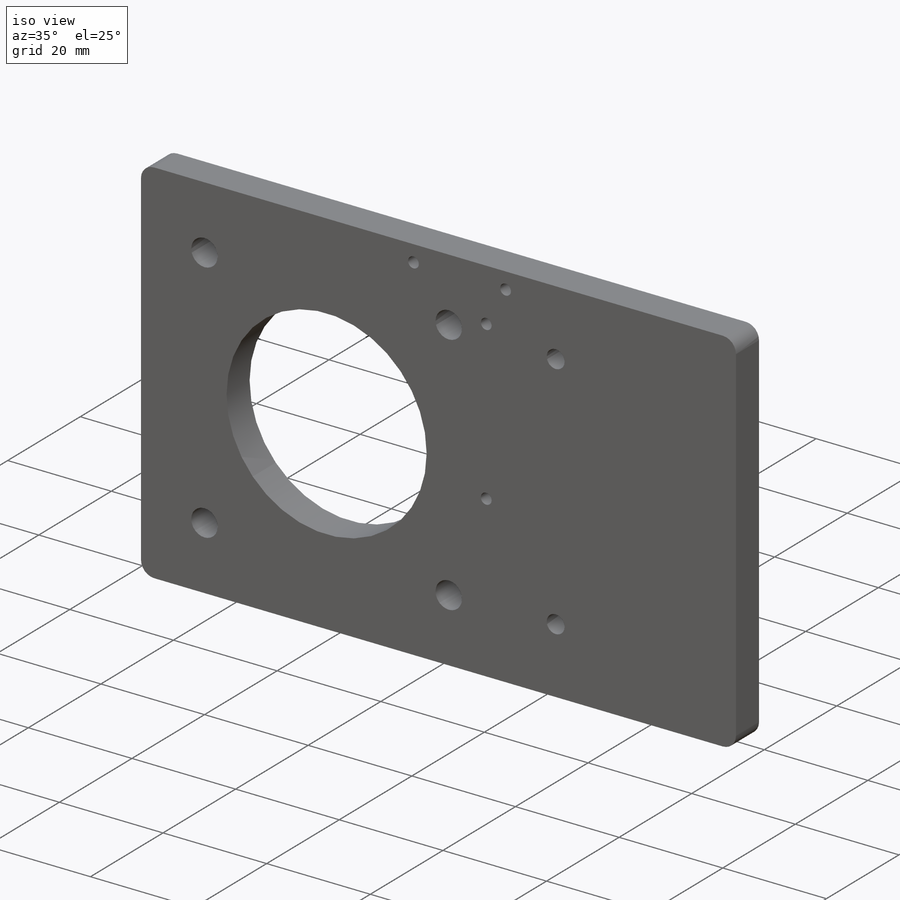
[diagram: iso view]
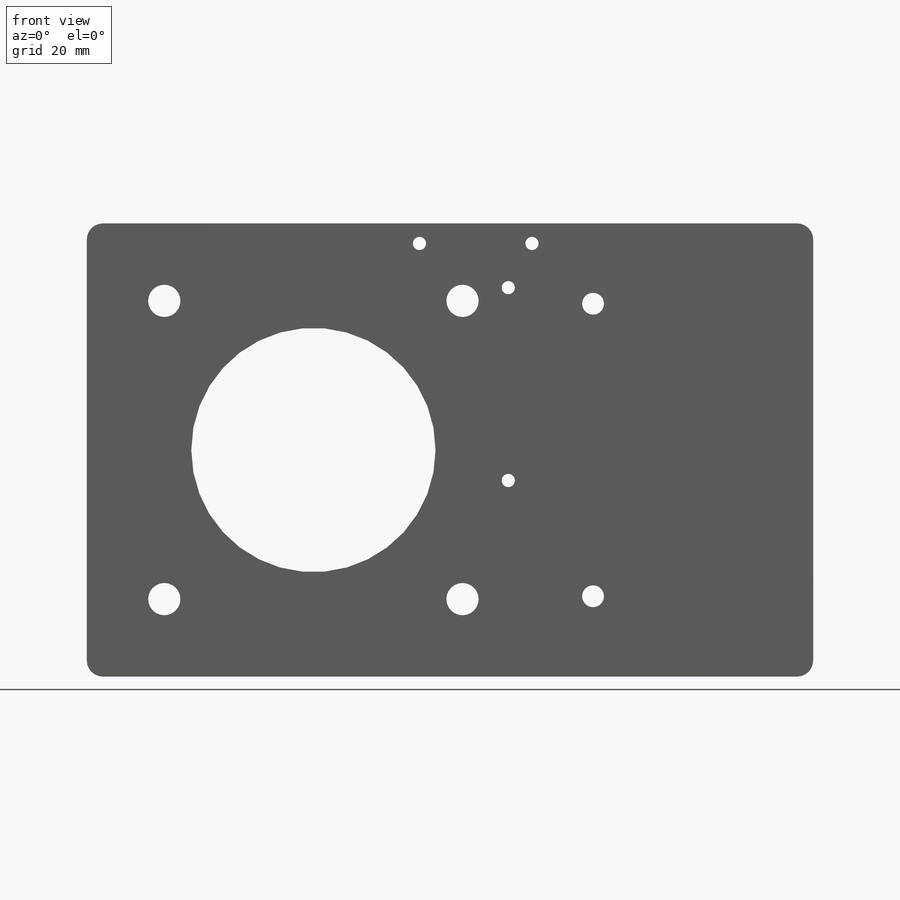
[diagram: front view]
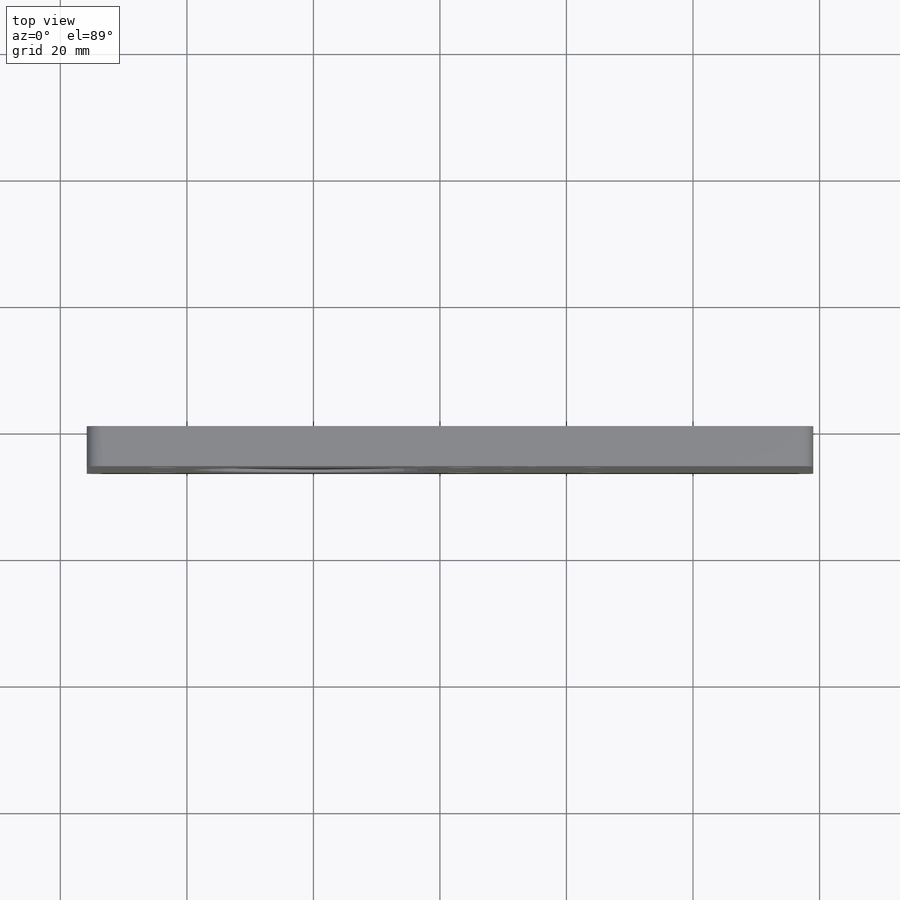
[diagram: top view]
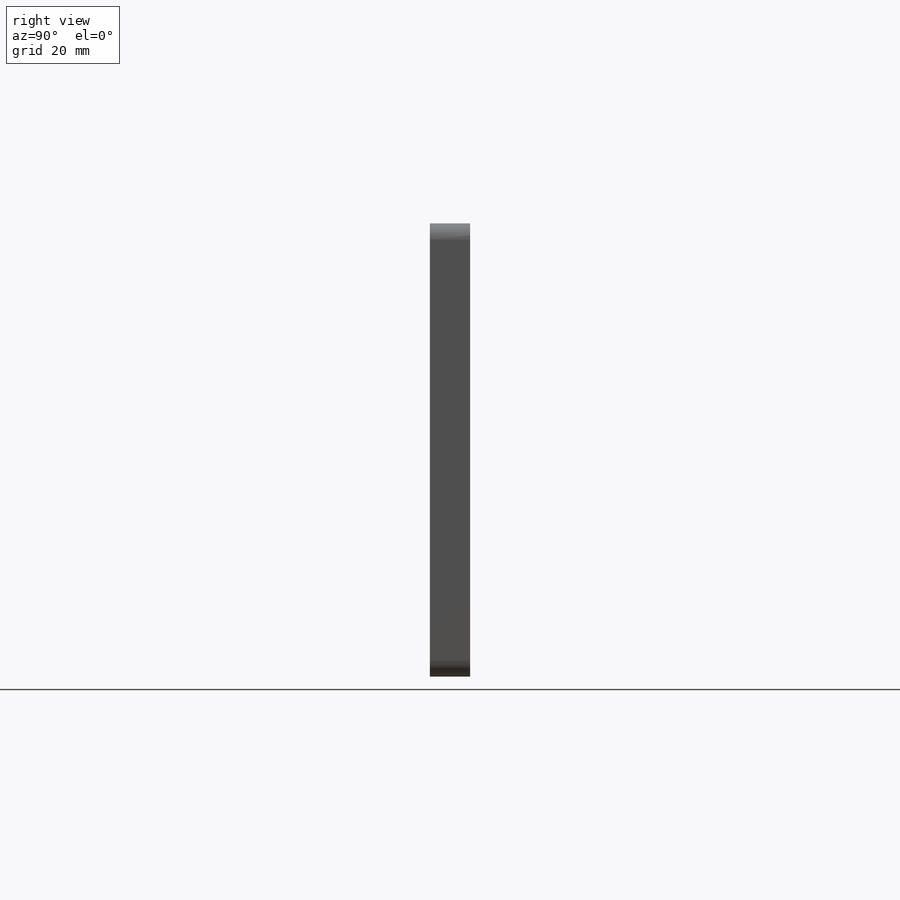
[diagram: right view]
SOLIDWORKS PART (.sldprt)
format: sldprt  version: not decoded by parser v0  size: 271,872 bytes
history: native  units: mm
features: sketch x6, hole x2, material x1, extrude x1 (+13 scaffold rows collapsed)
feature tree (23):
  scaffold x13  (default folders/planes/origin — collapsed)
  material  "Material <not specified>"
  sketch  "Sketch2"  dims[D1=0.0mm]
  sketch  "Sketch3"  dims[c1.D5=2.54mm c1.D6=38.1mm c1.D1=7.62mm c1.D2=7.62mm c1.D3=7.62mm c1.D4=50.8mm c2.D6=0.254mm]
  extrude  "Boss-Extrude1"  Depth=6.35mm
  hole  "Tap Drill for #3-56 Tap1"  Diameter=2.0828mm Depth=7.62mm
  sketch  "Sketch5"  dims[D1=3.81mm D2=3.81mm]
  sketch  "Sketch4"  dims[hole-wizard template sketch: 46 standard entries collapsed; hole parameters kept: c15.Hole Dia.=2.0828mm c15.Hole Depth=7.62mm c15.D3=~14.816244mm c15.Drill Angle=118.0deg]
  hole  "Tap Drill for #8-32 Tap2"  Diameter=3.4544mm Depth=6.35mm
  sketch  "Sketch8"  dims[D1=12.7mm D2=12.7mm]
  sketch  "Sketch7"  dims[hole-wizard template sketch: 60 standard entries collapsed; hole parameters kept: c18.Thru Hole Depth=6.35mm]
decode coverage: 9 of 9 modeling features carry decoded parameters
note: ~ marks probable driven/reference dimensions
note: suppression state not decoded; provenance and decode notes live in map.json
